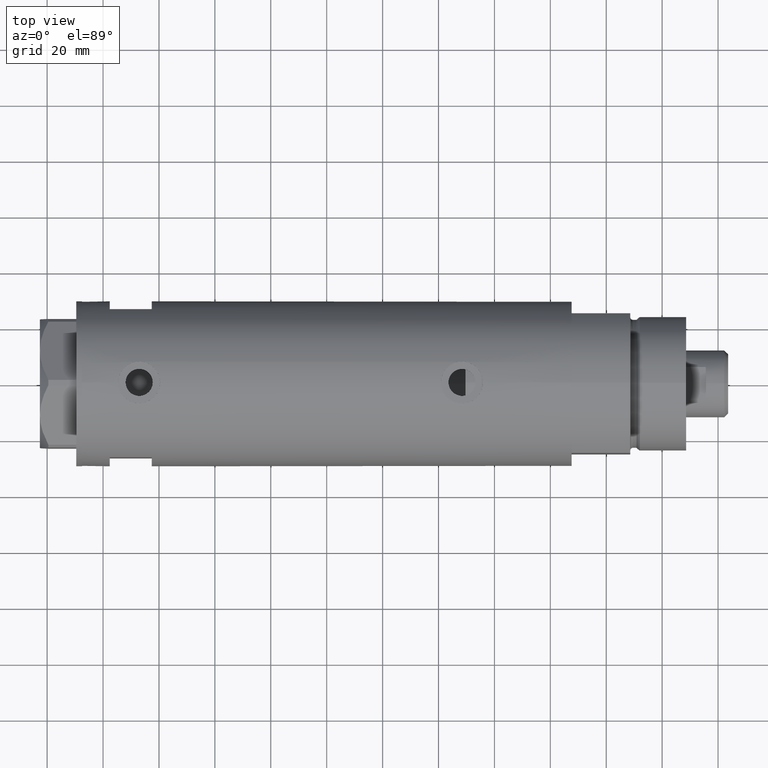
[diagram: clean part render]
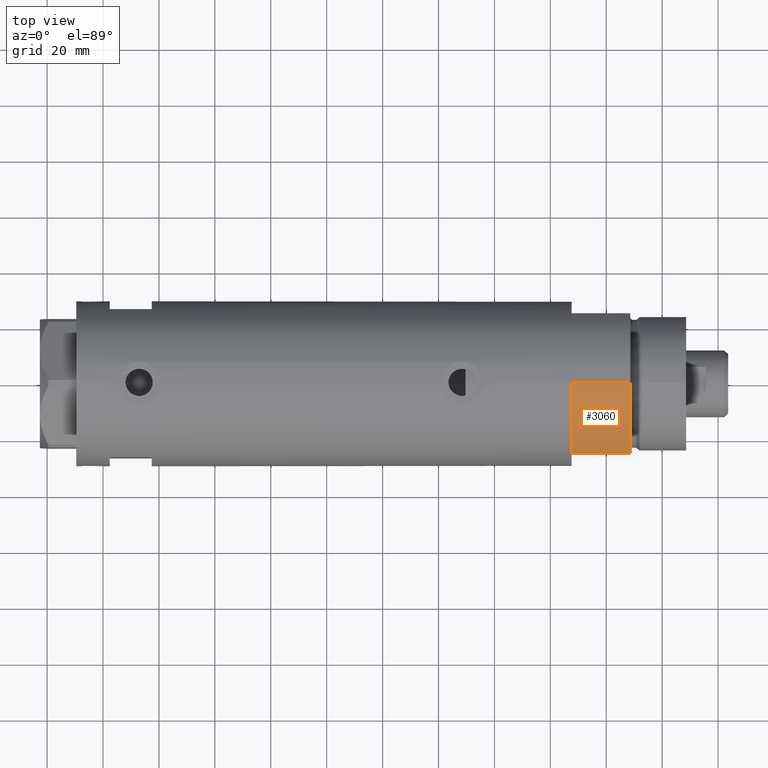
[diagram: same view with one face highlighted and labeled with its STEP entity id]
A machine part, top view. The second image highlights one B-rep face of the part: STEP entity #3060.
In plain terms, the highlighted cylindrical surface (partial cylindrical patch) has radius 29.5 mm, axis along (-1, -0, 0).
Its self-contained STEP definition (entity closure, byte-faithful):
#56 = VERTEX_POINT ( 'NONE', #995 ) ;
#57 = FACE_OUTER_BOUND ( 'NONE', #783, .T. ) ;
#269 = LINE ( 'NONE', #568, #4085 ) ;
#298 = LINE ( 'NONE', #3774, #3921 ) ;
#371 = CARTESIAN_POINT ( 'NONE',  ( 0.000000000000000000, 0.000000000000000000, 21.00000000000000000 ) ) ;
#439 = EDGE_CURVE ( 'NONE', #1094, #56, #298, .T. ) ;
#496 = DIRECTION ( 'NONE',  ( 0.000000000000000000, 0.000000000000000000, 1.000000000000000000 ) ) ;
#568 = CARTESIAN_POINT ( 'NONE',  ( -29.50000000000000355, 0.000000000000000000, 21.00000000000000000 ) ) ;
#629 = VERTEX_POINT ( 'NONE', #3347 ) ;
#718 = CYLINDRICAL_SURFACE ( 'NONE', #3214, 29.50000000000000355 ) ;
#783 = EDGE_LOOP ( 'NONE', ( #2316, #4024, #966, #2734 ) ) ;
#909 = EDGE_CURVE ( 'NONE', #3963, #56, #3058, .T. ) ;
#966 = ORIENTED_EDGE ( 'NONE', *, *, #4266, .T. ) ;
#967 = AXIS2_PLACEMENT_3D ( 'NONE', #3318, #3569, #1843 ) ;
#995 = CARTESIAN_POINT ( 'NONE',  ( -15.66045976336583045, -24.99999999999999645, 20.99999999999999645 ) ) ;
#1094 = VERTEX_POINT ( 'NONE', #3226 ) ;
#1277 = DIRECTION ( 'NONE',  ( -0.000000000000000000, -0.000000000000000000, -1.000000000000000000 ) ) ;
#1568 = CARTESIAN_POINT ( 'NONE',  ( -29.50000000000000355, 0.000000000000000000, 21.00000000000000000 ) ) ;
#1699 = AXIS2_PLACEMENT_3D ( 'NONE', #3605, #496, #4269 ) ;
#1753 = DIRECTION ( 'NONE',  ( -0.000000000000000000, -0.000000000000000000, -1.000000000000000000 ) ) ;
#1843 = DIRECTION ( 'NONE',  ( 1.000000000000000000, 0.000000000000000000, 0.000000000000000000 ) ) ;
#2158 = DIRECTION ( 'NONE',  ( -1.000000000000000000, 0.000000000000000000, 0.000000000000000000 ) ) ;
#2316 = ORIENTED_EDGE ( 'NONE', *, *, #909, .F. ) ;
#2734 = ORIENTED_EDGE ( 'NONE', *, *, #439, .T. ) ;
#3058 = CIRCLE ( 'NONE', #967, 29.50000000000000355 ) ;
#3060 = ADVANCED_FACE ( 'NONE', ( #57 ), #718, .T. ) ;
#3214 = AXIS2_PLACEMENT_3D ( 'NONE', #371, #1753, #2158 ) ;
#3226 = CARTESIAN_POINT ( 'NONE',  ( -15.66045976336582690, -25.00000000000000000, 0.000000000000000000 ) ) ;
#3318 = CARTESIAN_POINT ( 'NONE',  ( 0.000000000000000000, 0.000000000000000000, 21.00000000000000000 ) ) ;
#3347 = CARTESIAN_POINT ( 'NONE',  ( -29.50000000000000355, 0.000000000000000000, 0.000000000000000000 ) ) ;
#3569 = DIRECTION ( 'NONE',  ( 0.000000000000000000, 0.000000000000000000, 1.000000000000000000 ) ) ;
#3605 = CARTESIAN_POINT ( 'NONE',  ( 0.000000000000000000, 0.000000000000000000, 0.000000000000000000 ) ) ;
#3774 = CARTESIAN_POINT ( 'NONE',  ( -15.66045976336583401, -25.00000000000000000, 0.000000000000000000 ) ) ;
#3796 = DIRECTION ( 'NONE',  ( -0.000000000000000000, -0.000000000000000000, 1.000000000000000000 ) ) ;
#3921 = VECTOR ( 'NONE', #3796, 1000.000000000000000 ) ;
#3963 = VERTEX_POINT ( 'NONE', #1568 ) ;
#4024 = ORIENTED_EDGE ( 'NONE', *, *, #4324, .T. ) ;
#4085 = VECTOR ( 'NONE', #1277, 1000.000000000000000 ) ;
#4156 = CIRCLE ( 'NONE', #1699, 29.50000000000000355 ) ;
#4266 = EDGE_CURVE ( 'NONE', #629, #1094, #4156, .T. ) ;
#4269 = DIRECTION ( 'NONE',  ( 1.000000000000000000, 0.000000000000000000, 0.000000000000000000 ) ) ;
#4324 = EDGE_CURVE ( 'NONE', #3963, #629, #269, .T. ) ;